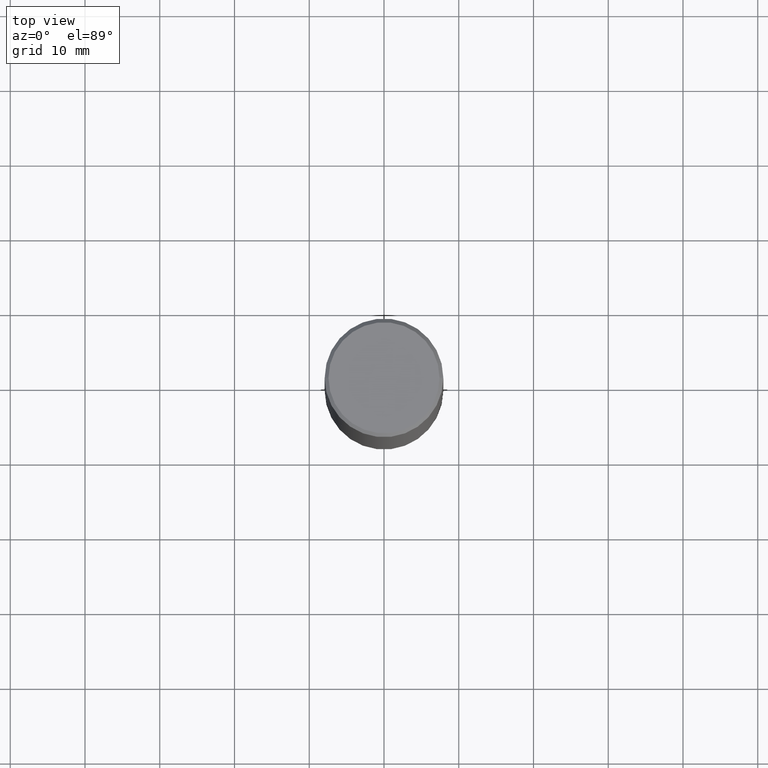
[diagram: clean part render]
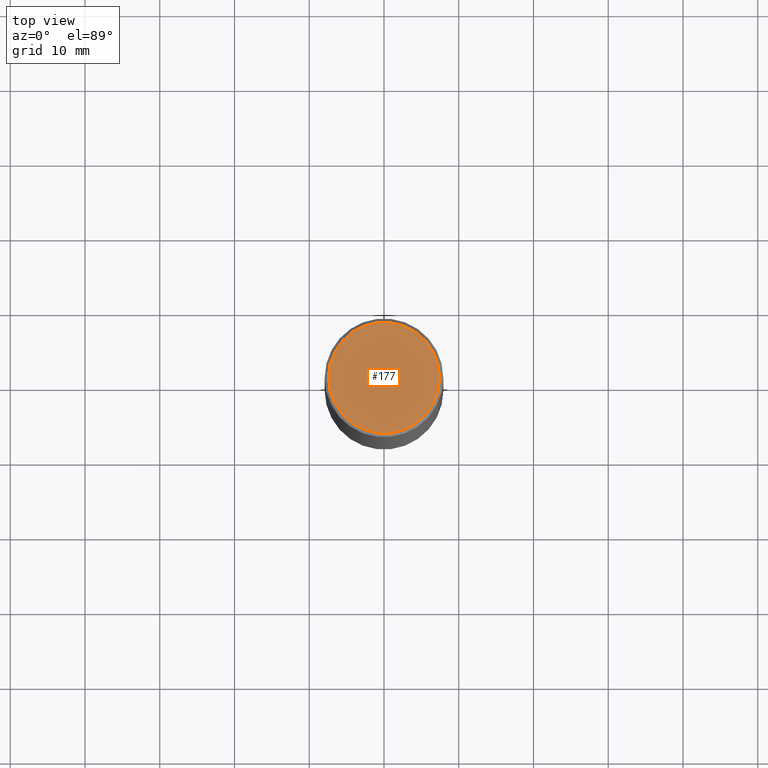
[diagram: same view with one face highlighted and labeled with its STEP entity id]
A machine part, top view. The second image highlights one B-rep face of the part: STEP entity #177.
In plain terms, the highlighted planar face has unit normal (0, -0, -1).
Its self-contained STEP definition (entity closure, byte-faithful):
#17 = DIRECTION ( 'NONE',  ( -2.445468806185136597E-29, 3.491481338843145583E-15, 1.000000000000000000 ) ) ;
#26 = ORIENTED_EDGE ( 'NONE', *, *, #183, .T. ) ;
#38 = AXIS2_PLACEMENT_3D ( 'NONE', #137, #334, #354 ) ;
#40 = CARTESIAN_POINT ( 'NONE',  ( -0.2924999999999997602, 2.077431396611662611E-15, 8.537024980186416602E-18 ) ) ;
#64 = CIRCLE ( 'NONE', #169, 0.2924999999999997602 ) ;
#102 = DIRECTION ( 'NONE',  ( 1.000000000000000000, -6.982962677686266711E-15, 4.876067333457693400E-29 ) ) ;
#108 = AXIS2_PLACEMENT_3D ( 'NONE', #259, #17, #102 ) ;
#123 = VERTEX_POINT ( 'NONE', #179 ) ;
#132 = DIRECTION ( 'NONE',  ( -2.445468806185136597E-29, 3.491481338843145583E-15, 1.000000000000000000 ) ) ;
#137 = CARTESIAN_POINT ( 'NONE',  ( 2.042516583223230962E-15, 0.2924999999999997602, -1.016989779121518801E-15 ) ) ;
#139 = EDGE_LOOP ( 'NONE', ( #26, #341 ) ) ;
#169 = AXIS2_PLACEMENT_3D ( 'NONE', #205, #132, #178 ) ;
#177 = ADVANCED_FACE ( 'NONE', ( #332 ), #267, .F. ) ;
#178 = DIRECTION ( 'NONE',  ( 1.000000000000000000, -6.982962677686266711E-15, 4.876067333457693400E-29 ) ) ;
#179 = CARTESIAN_POINT ( 'NONE',  ( 0.2924999999999997602, -2.110215457714318353E-15, 8.537024980215342529E-18 ) ) ;
#183 = EDGE_CURVE ( 'NONE', #284, #123, #236, .T. ) ;
#205 = CARTESIAN_POINT ( 'NONE',  ( -2.087702828670439639E-46, 2.980686340760894400E-32, 8.537024980200822558E-18 ) ) ;
#236 = CIRCLE ( 'NONE', #108, 0.2924999999999997602 ) ;
#240 = EDGE_CURVE ( 'NONE', #123, #284, #64, .T. ) ;
#259 = CARTESIAN_POINT ( 'NONE',  ( -2.087702828670439639E-46, 2.980686340760894400E-32, 8.537024980200822558E-18 ) ) ;
#267 = PLANE ( 'NONE',  #38 ) ;
#284 = VERTEX_POINT ( 'NONE', #40 ) ;
#332 = FACE_OUTER_BOUND ( 'NONE', #139, .T. ) ;
#334 = DIRECTION ( 'NONE',  ( 2.438088387897960049E-29, -3.491481338843145188E-15, -1.000000000000000000 ) ) ;
#341 = ORIENTED_EDGE ( 'NONE', *, *, #240, .T. ) ;
#354 = DIRECTION ( 'NONE',  ( -1.000000000000000000, 6.982962677686265922E-15, -4.876176775795935793E-29 ) ) ;